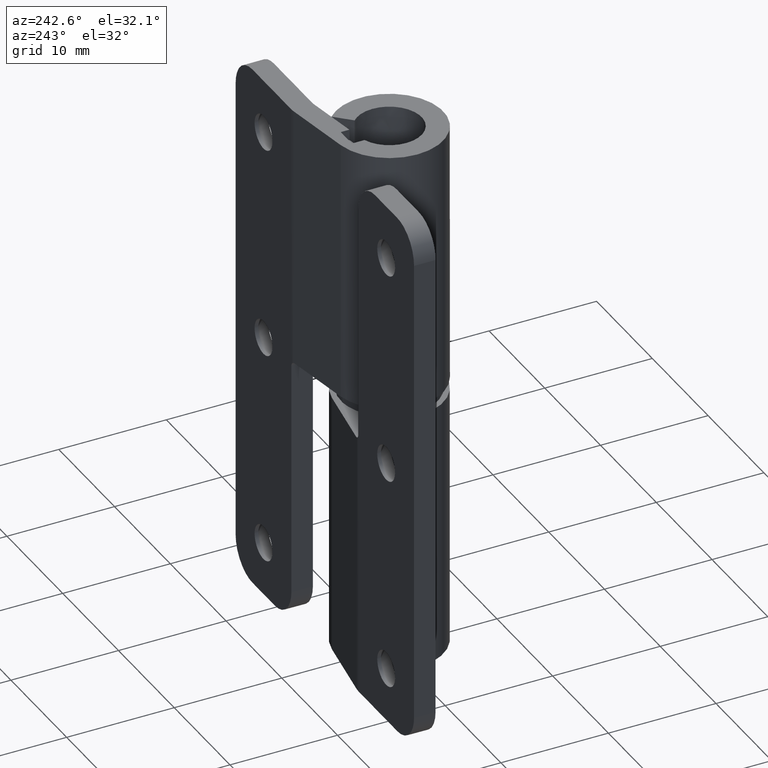
[diagram: clean part render]
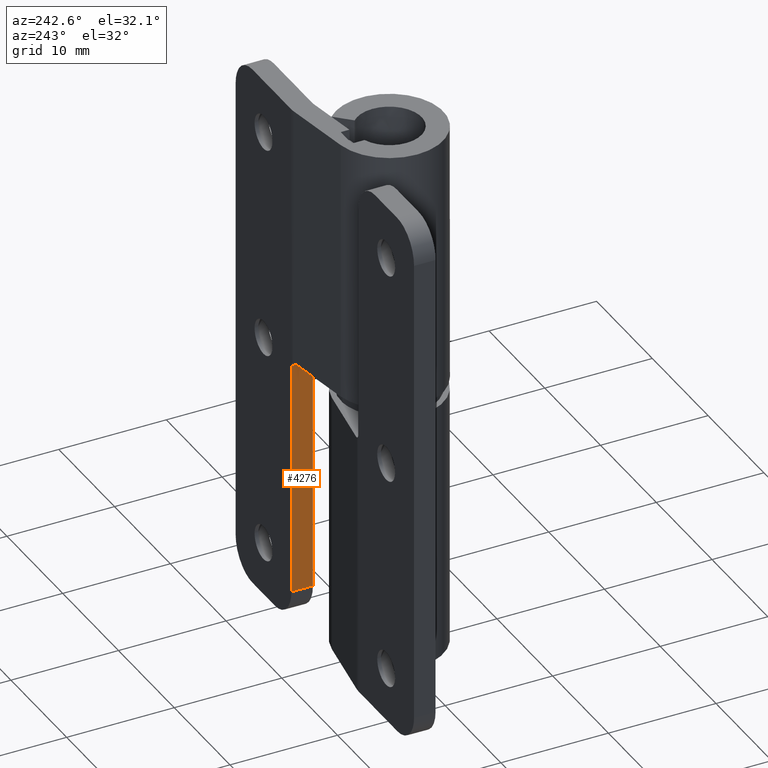
[diagram: same view with one face highlighted and labeled with its STEP entity id]
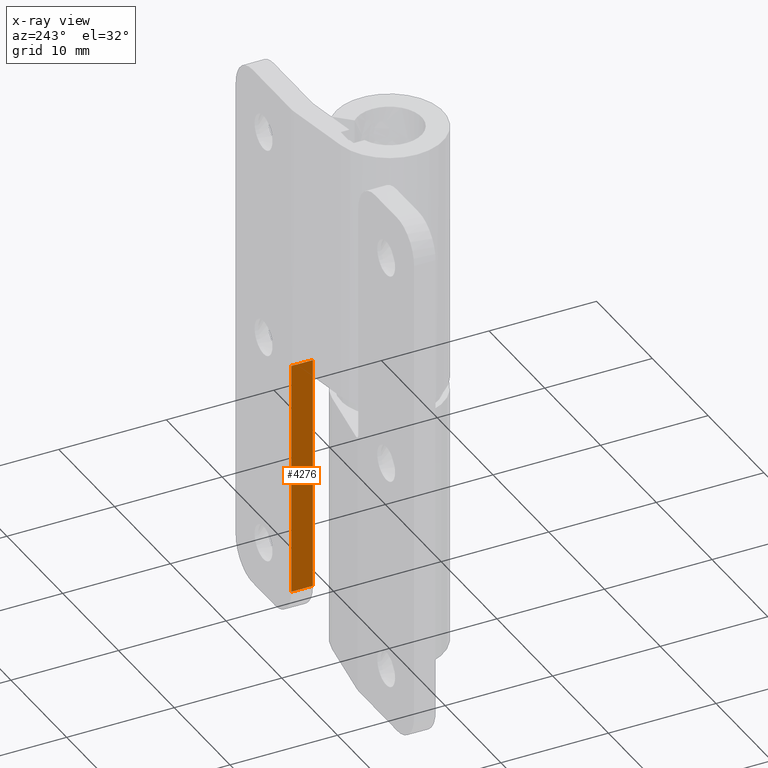
[diagram: x-ray of the same camera — body ghosted, the highlighted face saturated]
A machine part, auxiliary view. The second image highlights one B-rep face of the part: STEP entity #4276.
The next image is the same camera in x-ray: the body ghosted, the highlighted face saturated — about 0% of this face is hidden behind the body in this view.
In plain terms, the highlighted face is a freeform B-spline surface patch.
Its self-contained STEP definition (entity closure, byte-faithful):
#4011=CARTESIAN_POINT('',(6.000000000000440,4.000000000000116,25.0));
#4012=VERTEX_POINT('',#4011);
#4045=CARTESIAN_POINT('',(5.999999999999890,6.000000000000110,25.0));
#4046=VERTEX_POINT('',#4045);
#4066=CARTESIAN_POINT('',(6.000000000000440,4.000000000000116,25.0));
#4067=CARTESIAN_POINT('',(5.999999999999890,6.000000000000110,25.0));
#4068=QUASI_UNIFORM_CURVE('',1,(#4066,#4067),.UNSPECIFIED.,.F.,.U.);
#4069=EDGE_CURVE('',#4012,#4046,#4068,.T.);
#4210=CARTESIAN_POINT('',(6.000000000000440,4.000000000000116,2.999999999999890));
#4211=VERTEX_POINT('',#4210);
#4227=CARTESIAN_POINT('',(5.999999999999890,6.000000000000110,2.999999999999890));
#4228=VERTEX_POINT('',#4227);
#4229=CARTESIAN_POINT('',(5.999999999999890,6.000000000000110,2.999999999999890));
#4230=CARTESIAN_POINT('',(6.000000000000440,4.000000000000116,2.999999999999890));
#4231=QUASI_UNIFORM_CURVE('',1,(#4229,#4230),.UNSPECIFIED.,.F.,.U.);
#4232=EDGE_CURVE('',#4228,#4211,#4231,.T.);
#4257=CARTESIAN_POINT('',(5.999999999999890,3.900100003876504,26.098899957359741));
#4258=CARTESIAN_POINT('',(5.999999999999890,3.900100003876504,1.901099452554169));
#4259=CARTESIAN_POINT('',(5.999999999999890,6.099900049767904,26.098899957359741));
#4260=CARTESIAN_POINT('',(5.999999999999890,6.099900049767903,1.901099452554169));
#4261=B_SPLINE_SURFACE_WITH_KNOTS('',1,1,((#4257,#4259),(#4258,#4260)),.UNSPECIFIED.,.F.,.F.,.U.,(2,2),(2,2),(0.0,24.197800504805571),(0.0,2.199800045891399),.UNSPECIFIED.);
#4262=CARTESIAN_POINT('',(6.000000000000440,4.000000000000116,2.999999999999890));
#4263=CARTESIAN_POINT('',(6.000000000000440,4.000000000000116,25.0));
#4264=QUASI_UNIFORM_CURVE('',1,(#4262,#4263),.UNSPECIFIED.,.F.,.U.);
#4265=EDGE_CURVE('',#4211,#4012,#4264,.T.);
#4266=ORIENTED_EDGE('',*,*,#4265,.T.);
#4267=ORIENTED_EDGE('',*,*,#4069,.T.);
#4268=CARTESIAN_POINT('',(5.999999999999890,6.000000000000110,2.999999999999890));
#4269=CARTESIAN_POINT('',(5.999999999999890,6.000000000000110,25.0));
#4270=QUASI_UNIFORM_CURVE('',1,(#4268,#4269),.UNSPECIFIED.,.F.,.U.);
#4271=EDGE_CURVE('',#4228,#4046,#4270,.T.);
#4272=ORIENTED_EDGE('',*,*,#4271,.F.);
#4273=ORIENTED_EDGE('',*,*,#4232,.T.);
#4274=EDGE_LOOP('',(#4266,#4267,#4272,#4273));
#4275=FACE_OUTER_BOUND('',#4274,.T.);
#4276=ADVANCED_FACE('',(#4275),#4261,.F.);